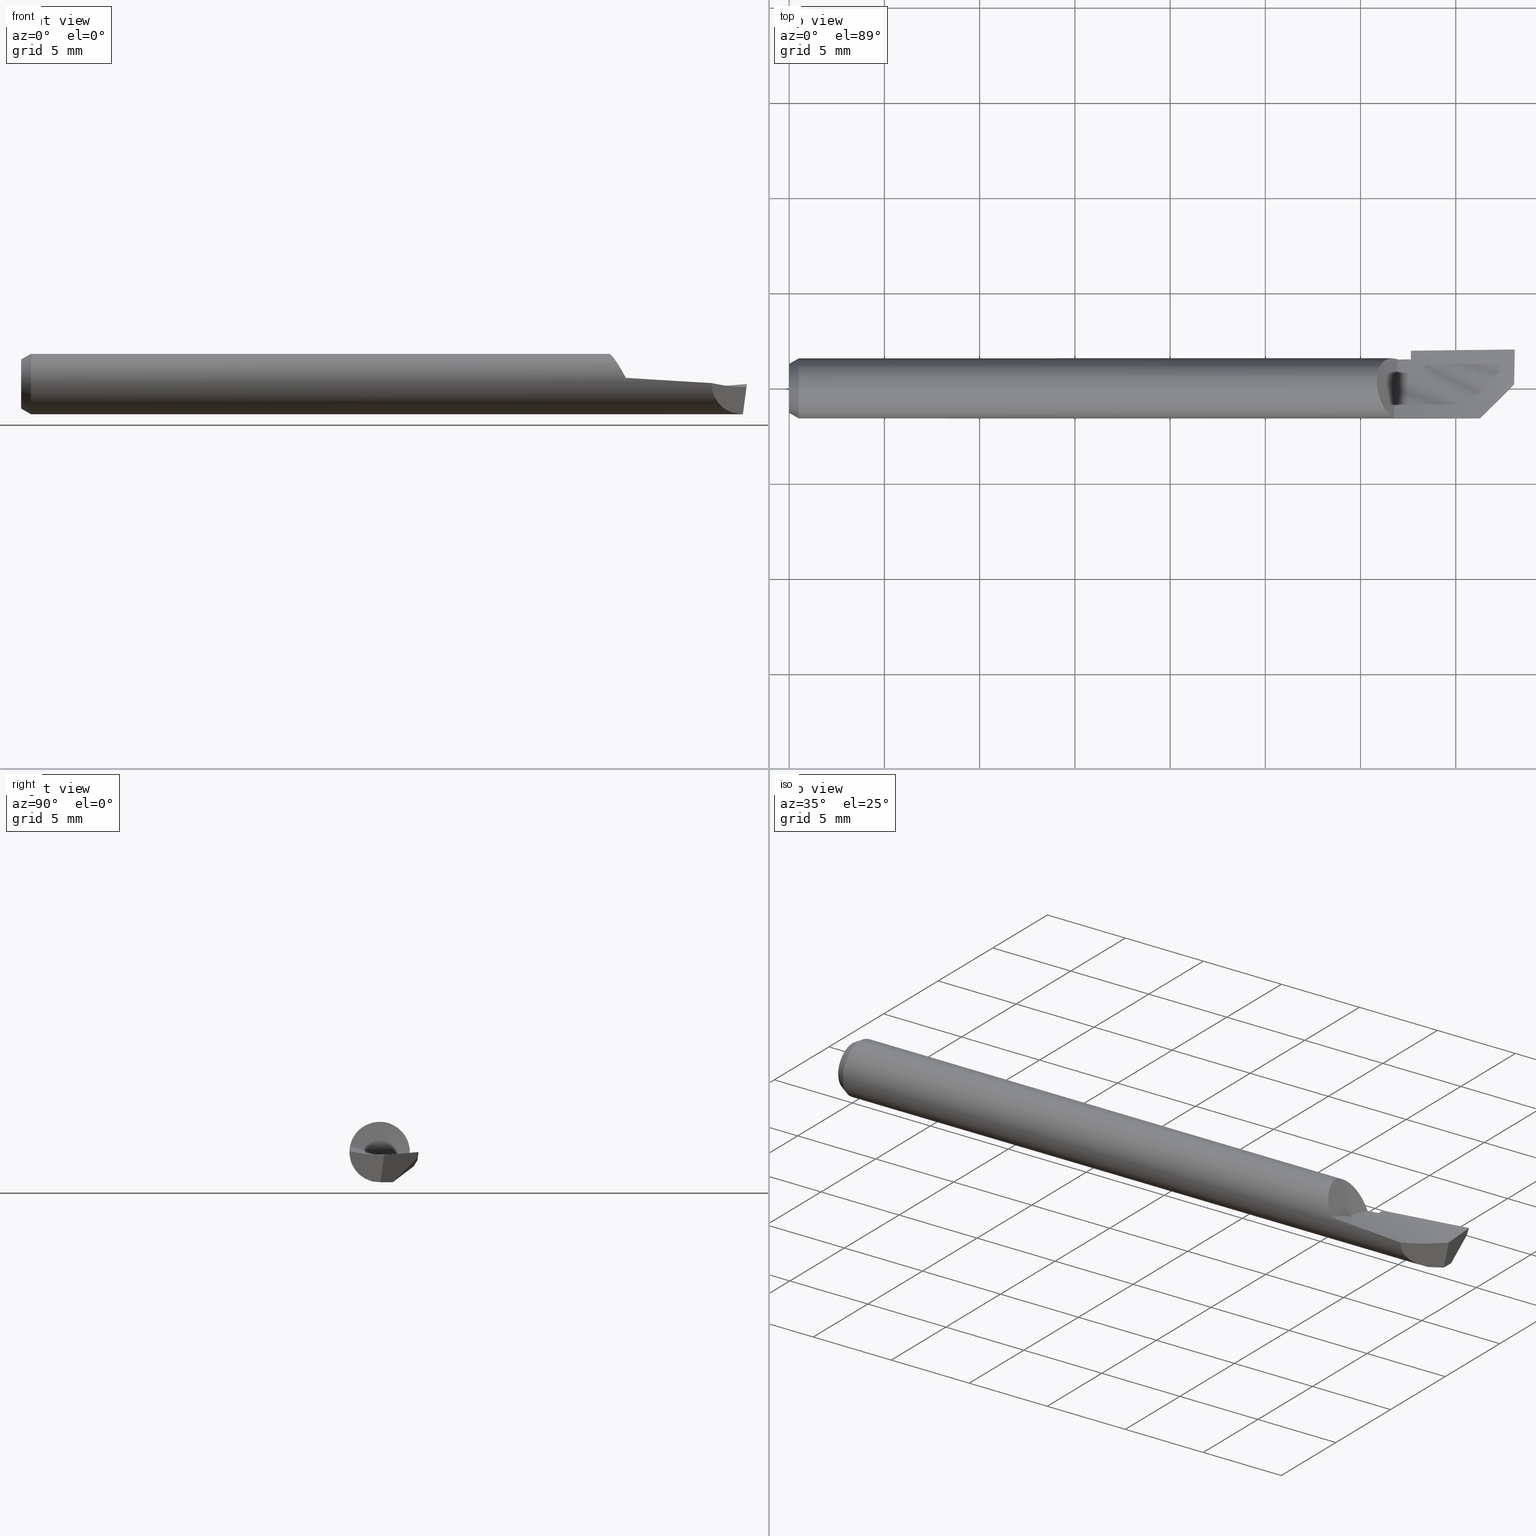
[diagram: canonical four-view strip — front | top / right | iso, engineering-drawing reading convention]
A machine part, canonical four-view strip (front | top / right | iso — engineering-drawing reading convention). The complete STEP part file that produces these views, byte-faithful:
ISO-10303-21;
HEADER;
FILE_DESCRIPTION (( 'STEP AP203' ),
    '1' );
FILE_NAME ('215739-HB150.STEP',
    '2024-07-30T21:05:15',
    ( '' ),
    ( '' ),
    'SwSTEP 2.0',
    'SolidWorks 2024',
    '' );
FILE_SCHEMA (( 'CONFIG_CONTROL_DESIGN' ));
ENDSEC;

DATA;
#1 = PERSON_AND_ORGANIZATION ( #154, #342 ) ;
#2 = CARTESIAN_POINT ( 'NONE',  ( 1.285000000000000142, 0.000000000000000000, -0.06239999999999999020 ) ) ;
#3 = ORIENTED_EDGE ( 'NONE', *, *, #375, .F. ) ;
#4 = ADVANCED_FACE ( 'NONE', ( #158 ), #104, .F. ) ;
#5 = VECTOR ( 'NONE', #303, 39.37007874015748143 ) ;
#6 = EDGE_CURVE ( 'NONE', #96, #221, #77, .T. ) ;
#7 = CARTESIAN_POINT ( 'NONE',  ( 1.338643880694338151, -0.06220352800694264883, 0.007386643929259769856 ) ) ;
#8 = ORIENTED_EDGE ( 'NONE', *, *, #168, .T. ) ;
#9 = EDGE_CURVE ( 'NONE', #232, #472, #204, .T. ) ;
#10 = CARTESIAN_POINT ( 'NONE',  ( 1.215341234382241620, 0.0004982669162004980945, 0.06239850635911061566 ) ) ;
#11 = VERTEX_POINT ( 'NONE', #286 ) ;
#12 = CARTESIAN_POINT ( 'NONE',  ( 1.215062640720519171, 0.002482261465665115772, 0.06235255943866734735 ) ) ;
#13 = CARTESIAN_POINT ( 'NONE',  ( 1.498570430108386420, 0.07639049162248937042, -0.01135039842946869437 ) ) ;
#14 = CARTESIAN_POINT ( 'NONE',  ( 1.233516715122231489, 0.05873520941118057226, 0.02125097969850281085 ) ) ;
#15 = CARTESIAN_POINT ( 'NONE',  ( 1.498808604085545948, 0.07707789029782824430, -0.009459555659213211495 ) ) ;
#16 = APPROVAL ( #455, 'UNSPECIFIED' ) ;
#17 = CARTESIAN_POINT ( 'NONE',  ( 0.000000000000000000, 0.000000000000000000, 0.000000000000000000 ) ) ;
#18 = CARTESIAN_POINT ( 'NONE',  ( 0.7962962962962978342, -0.04210506146454852383, 0.01909589215890198852 ) ) ;
#19 = ORIENTED_EDGE ( 'NONE', *, *, #217, .T. ) ;
#20 = CARTESIAN_POINT ( 'NONE',  ( 1.427229071682861727, -0.06237092831713793306, 0.001904547415644643844 ) ) ;
#21 = CONICAL_SURFACE ( 'NONE', #350, 0.06239999999999999714, 0.5235987755983002589 ) ;
#22 = AXIS2_PLACEMENT_3D ( 'NONE', #130, #179, #231 ) ;
#23 = LINE ( 'NONE', #71, #5 ) ;
#24 = CARTESIAN_POINT ( 'NONE',  ( 1.244636479562499565, 0.06229732504898780748, 0.003580627249325354054 ) ) ;
#25 = CARTESIAN_POINT ( 'NONE',  ( 1.228938620844154173, -0.03954811019755048729, 0.04826782345320551615 ) ) ;
#26 = CARTESIAN_POINT ( 'NONE',  ( 0.02000000000000000042, 0.000000000000000000, -0.06239999999999999714 ) ) ;
#27 = DIRECTION ( 'NONE',  ( 0.000000000000000000, 0.000000000000000000, 1.000000000000000000 ) ) ;
#28 = ADVANCED_FACE ( 'NONE', ( #289 ), #421, .T. ) ;
#29 = PLANE ( 'NONE',  #164 ) ;
#30 = LINE ( 'NONE', #160, #389 ) ;
#31 = CC_DESIGN_DATE_AND_TIME_ASSIGNMENT ( #95, #50, ( #539 ) ) ;
#32 = CARTESIAN_POINT ( 'NONE',  ( 1.252629383386663964, -0.02240979440101401043, -0.002553096178516221261 ) ) ;
#33 = ORIENTED_EDGE ( 'NONE', *, *, #90, .T. ) ;
#34 = COORDINATED_UNIVERSAL_TIME_OFFSET ( 8, 0, .BEHIND. ) ;
#35 = CARTESIAN_POINT ( 'NONE',  ( 1.492789826213970494, 0.03446688642667204011, -0.05544825501628470460 ) ) ;
#36 = PERSON_AND_ORGANIZATION ( #154, #342 ) ;
#37 =( BOUNDED_CURVE ( )  B_SPLINE_CURVE ( 3, ( #499, #136, #456, #398 ),
 .UNSPECIFIED., .F., .T. ) 
 B_SPLINE_CURVE_WITH_KNOTS ( ( 4, 4 ),
 ( 4.712388980384687898, 6.313711641188143986 ),
 .UNSPECIFIED. ) 
 CURVE ( )  GEOMETRIC_REPRESENTATION_ITEM ( )  RATIONAL_B_SPLINE_CURVE ( ( 1.000000000000000000, 0.7974880984232557424, 0.7974880984232557424, 1.000000000000000000 ) ) 
 REPRESENTATION_ITEM ( '' )  );
#38 = DIRECTION ( 'NONE',  ( 1.000000000000000000, 0.000000000000000000, 0.000000000000000000 ) ) ;
#39 = ORIENTED_EDGE ( 'NONE', *, *, #424, .F. ) ;
#40 = CIRCLE ( 'NONE', #128, 0.05085299461620744477 ) ;
#41 = APPROVAL_STATUS ( 'not_yet_approved' ) ;
#42 = DIRECTION ( 'NONE',  ( 0.1220122463319277123, 0.1220122463319273931, 0.9850005195379716305 ) ) ;
#43 = ORIENTED_EDGE ( 'NONE', *, *, #198, .F. ) ;
#44 = APPROVAL_ROLE ( '' ) ;
#45 = EDGE_CURVE ( 'NONE', #261, #180, #149, .T. ) ;
#46 = CARTESIAN_POINT ( 'NONE',  ( 1.496935170095070156, 0.06623259381584792327, -0.02394607398065381684 ) ) ;
#47 = ORIENTED_EDGE ( 'NONE', *, *, #405, .F. ) ;
#48 = B_SPLINE_CURVE_WITH_KNOTS ( 'NONE', 3,
 ( #326, #105, #507, #152 ),
 .UNSPECIFIED., .F., .F.,
 ( 4, 4 ),
 ( 2.322062217367471668E-16, 0.001824263073512901508 ),
 .UNSPECIFIED. ) ;
#49 = ADVANCED_FACE ( 'NONE', ( #106 ), #552, .F. ) ;
#50 = DATE_TIME_ROLE ( 'classification_date' ) ;
#51 = CARTESIAN_POINT ( 'NONE',  ( 1.495779368635660633, 0.05742269355516698565, -0.03273282644151234017 ) ) ;
#52 = ORIENTED_EDGE ( 'NONE', *, *, #374, .T. ) ;
#53 = CARTESIAN_POINT ( 'NONE',  ( 1.214999999999999858, 0.02656827298811766797, 0.05646137503133320107 ) ) ;
#54 = CARTESIAN_POINT ( 'NONE',  ( 0.7962962962962979452, -0.09302167809518145647, 0.09216304034620897978 ) ) ;
#55 = CARTESIAN_POINT ( 'NONE',  ( 1.215161247682621681, 0.001740713131355195020, 0.06237917047363608636 ) ) ;
#56 = CARTESIAN_POINT ( 'NONE',  ( 0.9722222222222235422, -0.1092725087323409422, 0.07576080870725090954 ) ) ;
#57 = CARTESIAN_POINT ( 'NONE',  ( 1.231911170695153324, 0.05764547565928701545, 0.02389072257668140714 ) ) ;
#58 = CARTESIAN_POINT ( 'NONE',  ( 1.499999999999999778, -0.04452895123775297420, -0.01243630973977583737 ) ) ;
#59 =( BOUNDED_CURVE ( )  B_SPLINE_CURVE ( 2, ( #408, #542, #575 ),
 .UNSPECIFIED., .F., .T. ) 
 B_SPLINE_CURVE_WITH_KNOTS ( ( 3, 3 ),
 ( 0.002800474881260479800, 0.3117378289616571374 ),
 .UNSPECIFIED. ) 
 CURVE ( )  GEOMETRIC_REPRESENTATION_ITEM ( )  RATIONAL_B_SPLINE_CURVE ( ( 0.9998628584775868244, 0.9923410090708106868, 0.9942195832789442189 ) ) 
 REPRESENTATION_ITEM ( '' )  );
#60 = LOCAL_TIME ( 14, 5, 15.00000000000000000, #34 ) ;
#61 = CARTESIAN_POINT ( 'NONE',  ( 0.02000000000000000042, 0.000000000000000000, 0.06239999999999999714 ) ) ;
#62 = EDGE_LOOP ( 'NONE', ( #364, #47, #257, #491 ) ) ;
#63 = DIMENSIONAL_EXPONENTS ( 1.000000000000000000, 0.000000000000000000, 0.000000000000000000, 0.000000000000000000, 0.000000000000000000, 0.000000000000000000, 0.000000000000000000 ) ;
#64 = CARTESIAN_POINT ( 'NONE',  ( 0.9833333333333347248, 0.06080022152004209424, -0.04802400282978503548 ) ) ;
#65 = EDGE_CURVE ( 'NONE', #518, #89, #414, .T. ) ;
#66 = ORIENTED_EDGE ( 'NONE', *, *, #374, .F. ) ;
#67 = CARTESIAN_POINT ( 'NONE',  ( 1.285000000000000586, 0.06038028350102195990, -0.01574742405834713907 ) ) ;
#68 = DIRECTION ( 'NONE',  ( 0.000000000000000000, 0.000000000000000000, -1.000000000000000000 ) ) ;
#69 = ADVANCED_FACE ( 'NONE', ( #213 ), #476, .F. ) ;
#70 = LOCAL_TIME ( 14, 5, 15.00000000000000000, #83 ) ;
#71 = CARTESIAN_POINT ( 'NONE',  ( 1.344799999999999773, -0.1448000000000000120, -0.06239999999999999020 ) ) ;
#72 = ORIENTED_EDGE ( 'NONE', *, *, #323, .F. ) ;
#73 = CARTESIAN_POINT ( 'NONE',  ( 1.242485752543471822, 0.06202582730458720134, 0.006956310956432748376 ) ) ;
#74 = CARTESIAN_POINT ( 'NONE',  ( 1.249835296245995098, -0.06108238399090171883, 0.01275548376142715545 ) ) ;
#75 = ORIENTED_EDGE ( 'NONE', *, *, #525, .F. ) ;
#76 = CARTESIAN_POINT ( 'NONE',  ( 1.353962018214266427, 0.02314617646180156321, -0.06239999999999999020 ) ) ;
#77 = B_SPLINE_CURVE_WITH_KNOTS ( 'NONE', 3,
 ( #290, #145, #423, #13, #15, #192, #113, #546, #504, #426 ),
 .UNSPECIFIED., .F., .F.,
 ( 4, 3, 3, 4 ),
 ( 6.857096618313869580E-19, 0.0001029188046693542261, 0.0002572972802890382085, 0.0004116760175425256260 ),
 .UNSPECIFIED. ) ;
#78 = CARTESIAN_POINT ( 'NONE',  ( 1.231210198614224982, -0.04348049364634020558, 0.04498844483085986945 ) ) ;
#79 = CC_DESIGN_PERSON_AND_ORGANIZATION_ASSIGNMENT ( #36, #459, ( #156 ) ) ;
#80 = CARTESIAN_POINT ( 'NONE',  ( 1.251846361524282303, 0.06201947540203197468, -0.007712021355594155143 ) ) ;
#81 = CARTESIAN_POINT ( 'NONE',  ( 1.228601843419931727, -0.03895000380799452933, 0.04875114253357506339 ) ) ;
#82 = VERTEX_POINT ( 'NONE', #556 ) ;
#83 = COORDINATED_UNIVERSAL_TIME_OFFSET ( 8, 0, .BEHIND. ) ;
#84 = CARTESIAN_POINT ( 'NONE',  ( 1.214999999999997859, 0.03552124287360624438, 0.05262055221089354667 ) ) ;
#85 = ORIENTED_EDGE ( 'NONE', *, *, #218, .F. ) ;
#86 = CARTESIAN_POINT ( 'NONE',  ( 0.02000000000000000042, 7.641796026679484656E-18, -0.06239999999999999714 ) ) ;
#87 = ORIENTED_EDGE ( 'NONE', *, *, #362, .T. ) ;
#88 =( NAMED_UNIT ( * ) SI_UNIT ( $, .STERADIAN. ) SOLID_ANGLE_UNIT ( ) );
#89 = VERTEX_POINT ( 'NONE', #74 ) ;
#90 = EDGE_CURVE ( 'NONE', #89, #11, #445, .T. ) ;
#91 = MECHANICAL_CONTEXT ( 'NONE', #558, 'mechanical' ) ;
#92 = CARTESIAN_POINT ( 'NONE',  ( 1.500000000000000222, 0.08049999999999998823, 0.000000000000000000 ) ) ;
#93 = EDGE_CURVE ( 'NONE', #99, #449, #538, .T. ) ;
#94 = ORIENTED_EDGE ( 'NONE', *, *, #6, .T. ) ;
#95 = DATE_AND_TIME ( #444, #70 ) ;
#96 = VERTEX_POINT ( 'NONE', #474 ) ;
#97 = CC_DESIGN_PERSON_AND_ORGANIZATION_ASSIGNMENT ( #533, #319, ( #539 ) ) ;
#98 = CARTESIAN_POINT ( 'NONE',  ( 1.155555555555556557, -0.04100383446170217938, -0.09234900009826521594 ) ) ;
#99 = VERTEX_POINT ( 'NONE', #436 ) ;
#100 =( GEOMETRIC_REPRESENTATION_CONTEXT ( 3 ) GLOBAL_UNCERTAINTY_ASSIGNED_CONTEXT ( ( #117 ) ) GLOBAL_UNIT_ASSIGNED_CONTEXT ( ( #207, #477, #88 ) ) REPRESENTATION_CONTEXT ( 'NONE', 'WORKASPACE' ) );
#101 = CARTESIAN_POINT ( 'NONE',  ( 1.500000000000000222, 0.07504044648600706469, -0.01500000000000001506 ) ) ;
#102 = CARTESIAN_POINT ( 'NONE',  ( 1.324074074074074403, 0.04233609429018298648, -0.02028796526564322078 ) ) ;
#103 = CARTESIAN_POINT ( 'NONE',  ( 1.230937209793407039, 0.05695609247891080668, 0.02549987211742123921 ) ) ;
#104 = PLANE ( 'NONE',  #341 ) ;
#105 = CARTESIAN_POINT ( 'NONE',  ( 1.499312381576385134, 0.05682575062050140152, -0.003917414861184890032 ) ) ;
#106 = FACE_OUTER_BOUND ( 'NONE', #188, .T. ) ;
#107 = VECTOR ( 'NONE', #508, 39.37007874015748143 ) ;
#108 = ADVANCED_FACE ( 'NONE', ( #260 ), #273, .T. ) ;
#109 = CARTESIAN_POINT ( 'NONE',  ( 1.285000000000000142, 0.02122393214403914263, -0.06239999999999997632 ) ) ;
#110 = DIRECTION ( 'NONE',  ( -1.000000000000000000, 0.000000000000000000, 0.000000000000000000 ) ) ;
#111 = EDGE_CURVE ( 'NONE', #457, #357, #250, .T. ) ;
#112 = CARTESIAN_POINT ( 'NONE',  ( 1.256278768973220217, 0.06077601470096085506, -0.01456594108188619639 ) ) ;
#113 = CARTESIAN_POINT ( 'NONE',  ( 1.499285083440839550, 0.07844896737594703184, -0.005676535577445449010 ) ) ;
#114 = CARTESIAN_POINT ( 'NONE',  ( 1.244214353131710027, 0.06225665313612734758, 0.004241600538668392761 ) ) ;
#115 = CARTESIAN_POINT ( 'NONE',  ( 1.327777777777777946, 0.08049999999999997435, -0.01274994744612516911 ) ) ;
#116 = ORIENTED_EDGE ( 'NONE', *, *, #422, .T. ) ;
#117 = UNCERTAINTY_MEASURE_WITH_UNIT (LENGTH_MEASURE( 1.000000000000000082E-05 ), #207, 'distance_accuracy_value', 'NONE');
#118 = AXIS2_PLACEMENT_3D ( 'NONE', #17, #412, #468 ) ;
#119 = CARTESIAN_POINT ( 'NONE',  ( 1.500000000000000222, 0.08049999999999998823, 0.000000000000000000 ) ) ;
#120 = B_SPLINE_CURVE_WITH_KNOTS ( 'NONE', 3,
 ( #331, #144, #376, #53 ),
 .UNSPECIFIED., .F., .F.,
 ( 4, 4 ),
 ( 0.000000000000000000, 1.000000000000000000 ),
 .UNSPECIFIED. ) ;
#121 = CARTESIAN_POINT ( 'NONE',  ( 1.422920425044222226, 0.02518942847711788668, -0.06239999999999997632 ) ) ;
#122 = CARTESIAN_POINT ( 'NONE',  ( 0.9833333333333347248, 0.06080022152004209424, -0.04802400282978503548 ) ) ;
#123 = CC_DESIGN_PERSON_AND_ORGANIZATION_ASSIGNMENT ( #307, #527, ( #246 ) ) ;
#124 = APPLICATION_CONTEXT ( 'configuration controlled 3d designs of mechanical parts and assemblies' ) ;
#125 = CARTESIAN_POINT ( 'NONE',  ( 1.199999999999999956, 0.000000000000000000, -0.06239999999999999020 ) ) ;
#126 = CARTESIAN_POINT ( 'NONE',  ( 1.214999999999999858, 0.000000000000000000, 0.000000000000000000 ) ) ;
#127 = CIRCLE ( 'NONE', #22, 0.06239999999999999714 ) ;
#128 = AXIS2_PLACEMENT_3D ( 'NONE', #471, #503, #282 ) ;
#129 = DATE_AND_TIME ( #530, #308 ) ;
#130 = CARTESIAN_POINT ( 'NONE',  ( 0.02000000000000000042, 0.000000000000000000, 0.000000000000000000 ) ) ;
#131 = ORIENTED_EDGE ( 'NONE', *, *, #482, .T. ) ;
#132 = PLANE ( 'NONE',  #243 ) ;
#133 = ORIENTED_EDGE ( 'NONE', *, *, #301, .F. ) ;
#134 = ADVANCED_FACE ( 'NONE', ( #347 ), #377, .T. ) ;
#135 = DATE_AND_TIME ( #276, #520 ) ;
#136 = CARTESIAN_POINT ( 'NONE',  ( 1.452155962588423943, -0.03744403741157589088, -0.06240000000000008040 ) ) ;
#137 = ORIENTED_EDGE ( 'NONE', *, *, #565, .F. ) ;
#138 = PERSON_AND_ORGANIZATION ( #154, #342 ) ;
#139 = CARTESIAN_POINT ( 'NONE',  ( 1.249835296245995098, -0.06108238399090171883, 0.01275548376142715545 ) ) ;
#140 = ORIENTED_EDGE ( 'NONE', *, *, #405, .T. ) ;
#141 = APPROVAL ( #41, 'UNSPECIFIED' ) ;
#142 = FACE_OUTER_BOUND ( 'NONE', #543, .T. ) ;
#143 = ORIENTED_EDGE ( 'NONE', *, *, #218, .T. ) ;
#144 = CARTESIAN_POINT ( 'NONE',  ( 1.214999999999999858, 0.01083956874227856755, 0.06037428967426877735 ) ) ;
#145 = CARTESIAN_POINT ( 'NONE',  ( 1.498252884790431061, 0.07547341054155225215, -0.01387132031019349017 ) ) ;
#146 = CARTESIAN_POINT ( 'NONE',  ( 1.229120050926931107, 0.05549586416279576190, 0.02854872319384249915 ) ) ;
#147 = ORIENTED_EDGE ( 'NONE', *, *, #487, .T. ) ;
#148 = CARTESIAN_POINT ( 'NONE',  ( 1.155555555555556557, 0.06673245070059055650, -0.03745462097408729790 ) ) ;
#149 = LINE ( 'NONE', #332, #107 ) ;
#150 = EDGE_CURVE ( 'NONE', #472, #82, #23, .T. ) ;
#151 = ADVANCED_FACE ( 'NONE', ( #210 ), #384, .T. ) ;
#152 = CARTESIAN_POINT ( 'NONE',  ( 1.498583317375058899, 0.008983317375058863519, -0.006454686212403699941 ) ) ;
#153 = CARTESIAN_POINT ( 'NONE',  ( 1.214999999999999858, 0.1376757507038381678, 0.4738830421824932193 ) ) ;
#154 = PERSON ( 'UNSPECIFIED', 'UNSPECIFIED', 'UNSPECIFIED', ('UNSPECIFIED'), ('UNSPECIFIED'), ('UNSPECIFIED') ) ;
#155 = VECTOR ( 'NONE', #233, 39.37007874015748143 ) ;
#156 = PRODUCT_DEFINITION_FORMATION_WITH_SPECIFIED_SOURCE ( 'ANY', '', #172, .NOT_KNOWN. ) ;
#157 =( LENGTH_UNIT ( ) NAMED_UNIT ( * ) SI_UNIT ( $, .METRE. ) );
#158 = FACE_OUTER_BOUND ( 'NONE', #229, .T. ) ;
#159 = CARTESIAN_POINT ( 'NONE',  ( 1.249835296245995098, -0.06108238399090171883, 0.01275548376142715545 ) ) ;
#160 = CARTESIAN_POINT ( 'NONE',  ( 0.000000000000000000, 0.000000000000000000, 0.06239999999999999714 ) ) ;
#161 = DIRECTION ( 'NONE',  ( 0.000000000000000000, 0.000000000000000000, 1.000000000000000000 ) ) ;
#162 = ORIENTED_EDGE ( 'NONE', *, *, #65, .T. ) ;
#163 = CARTESIAN_POINT ( 'NONE',  ( 1.285000000000000364, 0.07222602073669348588, -0.01668732863539127212 ) ) ;
#164 = AXIS2_PLACEMENT_3D ( 'NONE', #475, #557, #566 ) ;
#165 = CARTESIAN_POINT ( 'NONE',  ( 0.02000000000000000042, 7.641796026679484656E-18, 0.06239999999999999714 ) ) ;
#166 = CARTESIAN_POINT ( 'NONE',  ( 1.450816366310603511, -0.03878363368939651695, -0.004285371699869884761 ) ) ;
#167 = CARTESIAN_POINT ( 'NONE',  ( 0.8111111111111127814, 0.06512586804718326072, -0.04731671280954407449 ) ) ;
#168 = EDGE_CURVE ( 'NONE', #180, #82, #216, .T. ) ;
#169 = PERSON_AND_ORGANIZATION_ROLE ( 'creator' ) ;
#170 = CARTESIAN_POINT ( 'NONE',  ( 1.215416354742557825, -3.096158160012943776E-07, 0.06240138776565496564 ) ) ;
#171 = ADVANCED_FACE ( 'NONE', ( #280 ), #21, .T. ) ;
#172 = PRODUCT ( '215739-HB150', '215739-HB150', '', ( #91 ) ) ;
#173 = APPROVAL_STATUS ( 'not_yet_approved' ) ;
#174 = CARTESIAN_POINT ( 'NONE',  ( 1.500000000000000222, 0.08049999999999998823, 0.000000000000000000 ) ) ;
#175 = APPROVAL_PERSON_ORGANIZATION ( #397, #16, #44 ) ;
#176 = B_SPLINE_CURVE_WITH_KNOTS ( 'NONE', 3,
 ( #191, #333, #372, #238, #193, #241, #547, #146, #329, #103, #288, #197, #466, #57, #14, #370, #549, #252, #381, #73, #259, #114, #555, #24, #305, #390, #80, #112, #561, #346 ),
 .UNSPECIFIED., .F., .F.,
 ( 4, 2, 2, 2, 1, 1, 1, 2, 2, 2, 2, 1, 1, 1, 2, 2, 2, 4 ),
 ( 0.000000000000000000, 0.2500000000000091593, 0.3750000000000144329, 0.4375000000000178191, 0.4687500000000195399, 0.4843750000000187628, 0.4921875000000165978, 0.4960937500000154876, 0.5000000000000144329, 0.6249999999999950040, 0.6874999999999875655, 0.7187499999999837907, 0.7343749999999819034, 0.7421874999999810152, 0.7460937499999804601, 0.7499999999999799050, 0.8749999999999900080, 1.000000000000000000 ),
 .UNSPECIFIED. ) ;
#177 = ORIENTED_EDGE ( 'NONE', *, *, #565, .T. ) ;
#178 = PERSON_AND_ORGANIZATION_ROLE ( 'design_owner' ) ;
#179 = DIRECTION ( 'NONE',  ( -1.000000000000000000, -0.000000000000000000, -0.000000000000000000 ) ) ;
#180 = VERTEX_POINT ( 'NONE', #2 ) ;
#181 = APPROVAL_DATE_TIME ( #354, #141 ) ;
#182 = CARTESIAN_POINT ( 'NONE',  ( 1.285000000000000142, 0.06239999999999999714, 0.000000000000000000 ) ) ;
#183 = ORIENTED_EDGE ( 'NONE', *, *, #482, .F. ) ;
#184 = PRODUCT_RELATED_PRODUCT_CATEGORY ( 'detail', '', ( #172 ) ) ;
#185 = DIRECTION ( 'NONE',  ( 0.000000000000000000, 0.000000000000000000, 1.000000000000000000 ) ) ;
#186 = CARTESIAN_POINT ( 'NONE',  ( 1.215000000000000302, 0.07563097999572351848, 0.04879436779900076654 ) ) ;
#187 = AXIS2_PLACEMENT_3D ( 'NONE', #208, #382, #68 ) ;
#188 = EDGE_LOOP ( 'NONE', ( #411, #87 ) ) ;
#189 = CARTESIAN_POINT ( 'NONE',  ( 1.427229071682861727, -0.06237092831713793306, 0.001904547415644643844 ) ) ;
#190 = ORIENTED_EDGE ( 'NONE', *, *, #525, .T. ) ;
#191 = CARTESIAN_POINT ( 'NONE',  ( 1.214999999999999858, 0.02656827298811766797, 0.05646137503133320107 ) ) ;
#192 = CARTESIAN_POINT ( 'NONE',  ( 1.499046821953785802, 0.07776404945964025817, -0.007568267343788079651 ) ) ;
#193 = CARTESIAN_POINT ( 'NONE',  ( 1.223683417556308273, 0.04962681717030364981, 0.03804160079550419904 ) ) ;
#194 = CARTESIAN_POINT ( 'NONE',  ( 1.499999999999999778, 0.1304999999999998384, 0.01080780280633125007 ) ) ;
#195 = AXIS2_PLACEMENT_3D ( 'NONE', #153, #110, #292 ) ;
#196 = VECTOR ( 'NONE', #42, 39.37007874015748143 ) ;
#197 = CARTESIAN_POINT ( 'NONE',  ( 1.231665086290065991, 0.05747591180185984000, 0.02429602497390106683 ) ) ;
#198 = EDGE_CURVE ( 'NONE', #402, #573, #443, .T. ) ;
#199 = CARTESIAN_POINT ( 'NONE',  ( 1.148148148148148806, -0.04609699532909253966, 0.003543489792202707874 ) ) ;
#200 = EDGE_CURVE ( 'NONE', #96, #402, #59, .T. ) ;
#201 = CARTESIAN_POINT ( 'NONE',  ( 1.215416354742557825, -3.096158160012943776E-07, 0.06240138776565496564 ) ) ;
#202 = CARTESIAN_POINT ( 'NONE',  ( 1.499999999999999778, 0.04452895123775293951, -0.01243630973977578186 ) ) ;
#203 = CARTESIAN_POINT ( 'NONE',  ( 0.000000000000000000, 0.000000000000000000, 0.000000000000000000 ) ) ;
#204 = LINE ( 'NONE', #245, #450 ) ;
#205 = CC_DESIGN_DATE_AND_TIME_ASSIGNMENT ( #135, #495, ( #246 ) ) ;
#206 = AXIS2_PLACEMENT_3D ( 'NONE', #480, #478, #27 ) ;
#207 =( CONVERSION_BASED_UNIT ( 'INCH', #512 ) LENGTH_UNIT ( ) NAMED_UNIT ( #63 ) );
#208 = CARTESIAN_POINT ( 'NONE',  ( 0.02000000000000000042, 0.000000000000000000, 0.000000000000000000 ) ) ;
#209 = DIRECTION ( 'NONE',  ( -1.000000000000000000, -0.000000000000000000, -0.000000000000000000 ) ) ;
#210 = FACE_OUTER_BOUND ( 'NONE', #275, .T. ) ;
#211 = EDGE_LOOP ( 'NONE', ( #378, #314, #560, #183, #43 ) ) ;
#212 = CARTESIAN_POINT ( 'NONE',  ( 1.491874392833614227, 0.02738142070716441737, -0.06239999999999999020 ) ) ;
#213 = FACE_OUTER_BOUND ( 'NONE', #494, .T. ) ;
#214 = CARTESIAN_POINT ( 'NONE',  ( 1.500000000000000222, 0.08049999999999998823, 0.000000000000000000 ) ) ;
#215 = CC_DESIGN_APPROVAL ( #16, ( #156 ) ) ;
#216 = LINE ( 'NONE', #125, #155 ) ;
#217 = EDGE_CURVE ( 'NONE', #232, #96, #287, .T. ) ;
#218 = EDGE_CURVE ( 'NONE', #89, #385, #339, .T. ) ;
#219 = CARTESIAN_POINT ( 'NONE',  ( 1.284999999999999254, 0.07815578551701131416, -0.01699865729007948509 ) ) ;
#220 = DIRECTION ( 'NONE',  ( -0.7071067811865466846, 0.7071067811865483499, 0.000000000000000000 ) ) ;
#221 = VERTEX_POINT ( 'NONE', #92 ) ;
#222 = ADVANCED_FACE ( 'NONE', ( #365 ), #225, .T. ) ;
#223 = CARTESIAN_POINT ( 'NONE',  ( 0.000000000000000000, 0.000000000000000000, -0.05085299461620744477 ) ) ;
#224 = ORIENTED_EDGE ( 'NONE', *, *, #217, .F. ) ;
#225 = B_SPLINE_SURFACE_WITH_KNOTS ( 'NONE', 1, 3, ( 
 ( #309, #488, #84, #186 ),
 ( #277, #267, #320, #355 ) ),
 .UNSPECIFIED., .F., .F., .F.,
 ( 2, 2 ),
 ( 4, 4 ),
 ( 0.000000000000000000, 1.000000000000000000 ),
 ( 0.01047409669607552753, 0.01355842305451047079 ),
 .UNSPECIFIED. ) ;
#226 = DIRECTION ( 'NONE',  ( 1.000000000000000000, 0.000000000000000000, 0.000000000000000000 ) ) ;
#227 = ORIENTED_EDGE ( 'NONE', *, *, #90, .F. ) ;
#228 = DIRECTION ( 'NONE',  ( -1.000000000000000000, -0.000000000000000000, -0.000000000000000000 ) ) ;
#229 = EDGE_LOOP ( 'NONE', ( #500, #366, #254, #454, #242 ) ) ;
#230 = CALENDAR_DATE ( 2024, 30, 7 ) ;
#231 = DIRECTION ( 'NONE',  ( 0.000000000000000000, 0.000000000000000000, 1.000000000000000000 ) ) ;
#232 = VERTEX_POINT ( 'NONE', #531 ) ;
#233 = DIRECTION ( 'NONE',  ( 1.000000000000000000, -0.000000000000000000, -0.000000000000000000 ) ) ;
#234 = ORIENTED_EDGE ( 'NONE', *, *, #9, .F. ) ;
#235 = AXIS2_PLACEMENT_3D ( 'NONE', #203, #291, #501 ) ;
#236 = CARTESIAN_POINT ( 'NONE',  ( 1.427229071682861727, -0.06237092831713793306, 0.001904547415644643844 ) ) ;
#237 = CARTESIAN_POINT ( 'NONE',  ( 0.9722222222222234311, -0.04547218247286216597, 0.01167163379831380812 ) ) ;
#238 = CARTESIAN_POINT ( 'NONE',  ( 1.222031673769640170, 0.04711422705662771104, 0.04109495911430026405 ) ) ;
#239 = CARTESIAN_POINT ( 'NONE',  ( 0.9722222222222235422, 0.1202470393179030789, -0.05675236414383861422 ) ) ;
#240 = B_SPLINE_CURVE_WITH_KNOTS ( 'NONE', 3,
 ( #263, #76, #121, #212 ),
 .UNSPECIFIED., .F., .F.,
 ( 4, 4 ),
 ( 0.000000000000000000, 0.005256936623784464434 ),
 .UNSPECIFIED. ) ;
#241 = CARTESIAN_POINT ( 'NONE',  ( 1.226518768419224914, 0.05298604985758788993, 0.03301960953545664962 ) ) ;
#242 = ORIENTED_EDGE ( 'NONE', *, *, #45, .F. ) ;
#243 = AXIS2_PLACEMENT_3D ( 'NONE', #174, #311, #313 ) ;
#244 = CARTESIAN_POINT ( 'NONE',  ( 1.215385474800205978, 0.0002051950932025594699, 0.06240000065721609118 ) ) ;
#245 = CARTESIAN_POINT ( 'NONE',  ( 1.491613230050231831, -0.002544870104682421010, -0.06239999999999999020 ) ) ;
#246 = PRODUCT_DEFINITION ( 'UNKNOWN', '', #156, #473 ) ;
#247 = CARTESIAN_POINT ( 'NONE',  ( 1.327777777777777946, -0.02637718976660789749, -0.09884336947064184531 ) ) ;
#248 = DIRECTION ( 'NONE',  ( 0.000000000000000000, -0.000000000000000000, 1.000000000000000000 ) ) ;
#249 = CARTESIAN_POINT ( 'NONE',  ( 1.498583317375058899, 0.008983317375058863519, -0.006454686212403699941 ) ) ;
#250 = LINE ( 'NONE', #165, #438 ) ;
#251 = CIRCLE ( 'NONE', #118, 0.05085299461620744477 ) ;
#252 = CARTESIAN_POINT ( 'NONE',  ( 1.239720982764604962, 0.06139425361475552012, 0.01132678698372264862 ) ) ;
#253 = CARTESIAN_POINT ( 'NONE',  ( 1.249835296245995098, -0.06108238399090171883, 0.01275548376142715545 ) ) ;
#254 = ORIENTED_EDGE ( 'NONE', *, *, #150, .T. ) ;
#255 = DIRECTION ( 'NONE',  ( 0.000000000000000000, 0.000000000000000000, 1.000000000000000000 ) ) ;
#256 = CARTESIAN_POINT ( 'NONE',  ( 1.155555555555556557, 0.07656004956175985199, -0.02487586804718325967 ) ) ;
#257 = ORIENTED_EDGE ( 'NONE', *, *, #485, .T. ) ;
#258 = EDGE_CURVE ( 'NONE', #312, #357, #127, .T. ) ;
#259 = CARTESIAN_POINT ( 'NONE',  ( 1.243630165472373816, 0.06219032946664695277, 0.005157620384251591396 ) ) ;
#260 = FACE_OUTER_BOUND ( 'NONE', #62, .T. ) ;
#261 = VERTEX_POINT ( 'NONE', #534 ) ;
#262 = AXIS2_PLACEMENT_3D ( 'NONE', #126, #337, #161 ) ;
#263 = CARTESIAN_POINT ( 'NONE',  ( 1.285000000000000142, 0.02122393214403914263, -0.06239999999999997632 ) ) ;
#264 = VECTOR ( 'NONE', #367, 39.37007874015748143 ) ;
#265 = CARTESIAN_POINT ( 'NONE',  ( 1.255365967155684714, 0.01860310065129406470, -0.01275313803215253824 ) ) ;
#266 = ORIENTED_EDGE ( 'NONE', *, *, #279, .F. ) ;
#267 = CARTESIAN_POINT ( 'NONE',  ( 1.252524114887808349, -0.02361430046662641238, -0.002738913424446218561 ) ) ;
#268 = PERSON_AND_ORGANIZATION ( #154, #342 ) ;
#269 = CARTESIAN_POINT ( 'NONE',  ( 1.285000000000000586, 0.06038028350102195990, -0.01574742405834713907 ) ) ;
#270 = EDGE_LOOP ( 'NONE', ( #66, #190, #131, #399, #162, #143, #137 ) ) ;
#271 = SECURITY_CLASSIFICATION_LEVEL ( 'unclassified' ) ;
#272 = DIRECTION ( 'NONE',  ( 0.000000000000000000, 0.000000000000000000, 1.000000000000000000 ) ) ;
#273 = CONICAL_SURFACE ( 'NONE', #187, 0.06239999999999999714, 0.5235987755983002589 ) ;
#274 = APPROVAL_PERSON_ORGANIZATION ( #1, #391, #571 ) ;
#275 = EDGE_LOOP ( 'NONE', ( #72, #8, #284, #85, #33, #147, #353 ) ) ;
#276 = CALENDAR_DATE ( 2024, 30, 7 ) ;
#277 = CARTESIAN_POINT ( 'NONE',  ( 1.249477145073455864, -0.06702986064730614979, 0.01515205516212932320 ) ) ;
#278 = ORIENTED_EDGE ( 'NONE', *, *, #485, .F. ) ;
#279 = EDGE_CURVE ( 'NONE', #82, #385, #37, .T. ) ;
#280 = FACE_OUTER_BOUND ( 'NONE', #463, .T. ) ;
#281 = VERTEX_POINT ( 'NONE', #223 ) ;
#282 = DIRECTION ( 'NONE',  ( 0.000000000000000000, 0.000000000000000000, 1.000000000000000000 ) ) ;
#283 = ADVANCED_FACE ( 'NONE', ( #572 ), #132, .F. ) ;
#284 = ORIENTED_EDGE ( 'NONE', *, *, #279, .T. ) ;
#285 = CARTESIAN_POINT ( 'NONE',  ( 0.9833333333333347248, -0.05563047915679646127, -0.08585463072588858657 ) ) ;
#286 = CARTESIAN_POINT ( 'NONE',  ( 1.215416354742557825, -3.096158160012943776E-07, 0.06240138776565496564 ) ) ;
#287 = B_SPLINE_CURVE_WITH_KNOTS ( 'NONE', 3,
 ( #493, #35, #315, #460, #51, #46, #496 ),
 .UNSPECIFIED., .F., .F.,
 ( 4, 3, 4 ),
 ( 1.779478444136748701E-05, 0.0007773853438262711768, 0.001729594564419842341 ),
 .UNSPECIFIED. ) ;
#288 = CARTESIAN_POINT ( 'NONE',  ( 1.231445256067857930, 0.05732214278859906059, 0.02465872129221273468 ) ) ;
#289 = FACE_OUTER_BOUND ( 'NONE', #270, .T. ) ;
#290 = CARTESIAN_POINT ( 'NONE',  ( 1.498094141416539626, 0.07501404401408366673, -0.01513148404725747284 ) ) ;
#291 = DIRECTION ( 'NONE',  ( -1.000000000000000000, -0.000000000000000000, -0.000000000000000000 ) ) ;
#292 = DIRECTION ( 'NONE',  ( 0.000000000000000000, 0.2789911060392297748, 0.9602936856769428431 ) ) ;
#293 = CARTESIAN_POINT ( 'NONE',  ( 1.285000000000000586, 0.06038028350102195990, -0.01574742405834713907 ) ) ;
#294 = CARTESIAN_POINT ( 'NONE',  ( 1.324074074074074625, -0.1285942927630670529, 0.03381847378878584387 ) ) ;
#295 = CARTESIAN_POINT ( 'NONE',  ( 1.428339645624105758, 0.08031556160471547967, -0.005811896307208636557 ) ) ;
#296 = CARTESIAN_POINT ( 'NONE',  ( 1.155555555555556557, 0.06673245070059055650, -0.03745462097408729790 ) ) ;
#297 = CIRCLE ( 'NONE', #529, 0.06239999999999999714 ) ;
#298 = CARTESIAN_POINT ( 'NONE',  ( 1.221587132636402728, -0.02369398746549044796, 0.05784362774931333523 ) ) ;
#299 = EDGE_CURVE ( 'NONE', #357, #312, #297, .T. ) ;
#300 = DIRECTION ( 'NONE',  ( 0.8660254037844379305, 0.000000000000000000, -0.5000000000000012212 ) ) ;
#301 = EDGE_CURVE ( 'NONE', #472, #502, #453, .T. ) ;
#302 =( BOUNDED_CURVE ( )  B_SPLINE_CURVE ( 3, ( #386, #163, #344, #293 ),
 .UNSPECIFIED., .F., .T. ) 
 B_SPLINE_CURVE_WITH_KNOTS ( ( 4, 4 ),
 ( 8.400482781909875574E-05, 0.0005361899232507196487 ),
 .UNSPECIFIED. ) 
 CURVE ( )  GEOMETRIC_REPRESENTATION_ITEM ( )  RATIONAL_B_SPLINE_CURVE ( ( 0.9818899732500591115, 0.9809521610757138133, 0.9801186838641855470, 0.9793895416154743128 ) ) 
 REPRESENTATION_ITEM ( '' )  );
#303 = DIRECTION ( 'NONE',  ( -0.7071067811865483499, -0.7071067811865466846, 0.000000000000000000 ) ) ;
#304 = ORIENTED_EDGE ( 'NONE', *, *, #375, .T. ) ;
#305 = CARTESIAN_POINT ( 'NONE',  ( 1.244682950516643016, 0.06230162282814328406, 0.003507885105012513525 ) ) ;
#306 = DIRECTION ( 'NONE',  ( -0.7071067811865483499, -0.7071067811865466846, 0.000000000000000000 ) ) ;
#307 = PERSON_AND_ORGANIZATION ( #154, #342 ) ;
#308 = LOCAL_TIME ( 14, 5, 15.00000000000000000, #395 ) ;
#309 = CARTESIAN_POINT ( 'NONE',  ( 1.214999999999999192, -0.04165141917533745491, 0.07758982109010667538 ) ) ;
#310 = APPROVAL_DATE_TIME ( #129, #391 ) ;
#311 = DIRECTION ( 'NONE',  ( -0.9925083585251990304, 0.008661489226065358787, 0.1218693434051474900 ) ) ;
#312 = VERTEX_POINT ( 'NONE', #86 ) ;
#313 = DIRECTION ( 'NONE',  ( 0.1218739150664907706, 0.000000000000000000, 0.9925455903012041503 ) ) ;
#314 = ORIENTED_EDGE ( 'NONE', *, *, #45, .T. ) ;
#315 = CARTESIAN_POINT ( 'NONE',  ( 1.493707277637140951, 0.04153478646506825883, -0.04847882659177697728 ) ) ;
#316 = AXIS2_PLACEMENT_3D ( 'NONE', #351, #185, #400 ) ;
#317 = VERTEX_POINT ( 'NONE', #269 ) ;
#318 = ADVANCED_FACE ( 'NONE', ( #578 ), #448, .F. ) ;
#319 = PERSON_AND_ORGANIZATION_ROLE ( 'classification_officer' ) ;
#320 = CARTESIAN_POINT ( 'NONE',  ( 1.255679714658388901, 0.02260273811150143378, -0.01405578826490063056 ) ) ;
#321 = EDGE_CURVE ( 'NONE', #261, #402, #519, .T. ) ;
#322 = ORIENTED_EDGE ( 'NONE', *, *, #93, .T. ) ;
#323 = EDGE_CURVE ( 'NONE', #180, #312, #551, .T. ) ;
#324 = FACE_OUTER_BOUND ( 'NONE', #541, .T. ) ;
#325 = ORIENTED_EDGE ( 'NONE', *, *, #323, .T. ) ;
#326 = CARTESIAN_POINT ( 'NONE',  ( 1.500000000000000222, 0.08049999999999998823, 0.000000000000000000 ) ) ;
#327 = CARTESIAN_POINT ( 'NONE',  ( 1.148148148148148806, -0.1189334007477039767, 0.05478964124801836283 ) ) ;
#328 = LOCAL_TIME ( 14, 5, 15.00000000000000000, #486 ) ;
#329 = CARTESIAN_POINT ( 'NONE',  ( 1.229940680887320781, 0.05619540205819162360, 0.02716132427227490459 ) ) ;
#330 = ORIENTED_EDGE ( 'NONE', *, *, #563, .F. ) ;
#331 = CARTESIAN_POINT ( 'NONE',  ( 1.214999999999999858, 0.002974872207176468188, 0.06232904728415931961 ) ) ;
#332 = CARTESIAN_POINT ( 'NONE',  ( 1.285000000000000142, 0.06239999999999999714, -0.06239999999999999020 ) ) ;
#333 = CARTESIAN_POINT ( 'NONE',  ( 1.215919365933783247, 0.03286560805013540726, 0.05349813510236401531 ) ) ;
#334 = CARTESIAN_POINT ( 'NONE',  ( 1.199999999999999956, 0.000000000000000000, -0.06239999999999999020 ) ) ;
#335 = DIRECTION ( 'NONE',  ( -0.008726535498366801494, -0.9999619230641711987, 0.000000000000000000 ) ) ;
#336 = CARTESIAN_POINT ( 'NONE',  ( 1.356669798653250103, 0.07952544297217399583, -0.01147438205678345639 ) ) ;
#337 = DIRECTION ( 'NONE',  ( -1.000000000000000000, 0.000000000000000000, 0.000000000000000000 ) ) ;
#338 = FACE_OUTER_BOUND ( 'NONE', #388, .T. ) ;
#339 =( BOUNDED_CURVE ( )  B_SPLINE_CURVE ( 2, ( #139, #7, #189 ),
 .UNSPECIFIED., .F., .F. ) 
 B_SPLINE_CURVE_WITH_KNOTS ( ( 3, 3 ),
 ( 0.6451632367925622669, 0.8958541847013351545 ),
 .UNSPECIFIED. ) 
 CURVE ( )  GEOMETRIC_REPRESENTATION_ITEM ( )  RATIONAL_B_SPLINE_CURVE ( ( 0.9803429797851890282, 0.9771918254678608751, 0.9815758700507004608 ) ) 
 REPRESENTATION_ITEM ( '' )  );
#340 = CARTESIAN_POINT ( 'NONE',  ( 0.9833333333333347248, 0.07262009912351971574, -0.03700178864824135022 ) ) ;
#341 = AXIS2_PLACEMENT_3D ( 'NONE', #334, #248, #511 ) ;
#342 = ORGANIZATION ( 'UNSPECIFIED', 'UNSPECIFIED', '' ) ;
#343 = B_SPLINE_CURVE_WITH_KNOTS ( 'NONE', 3,
 ( #214, #295, #336, #383 ),
 .UNSPECIFIED., .F., .F.,
 ( 4, 4 ),
 ( 6.960919512205830802E-18, 0.005478461887785326598 ),
 .UNSPECIFIED. ) ;
#344 = CARTESIAN_POINT ( 'NONE',  ( 1.285000000000000364, 0.06630021874635304291, -0.01627029642031938006 ) ) ;
#345 = CARTESIAN_POINT ( 'NONE',  ( 1.216396980198236388, -0.006366907595454449412, 0.06239997961777467989 ) ) ;
#346 = CARTESIAN_POINT ( 'NONE',  ( 1.258103799009599344, 0.05994036010015910132, -0.01734685075347273953 ) ) ;
#347 = FACE_OUTER_BOUND ( 'NONE', #535, .T. ) ;
#348 = APPROVAL_DATE_TIME ( #447, #16 ) ;
#349 = CARTESIAN_POINT ( 'NONE',  ( 1.240848254320486399, -0.05547916175596864785, 0.02939914910442548851 ) ) ;
#350 = AXIS2_PLACEMENT_3D ( 'NONE', #410, #38, #540 ) ;
#351 = CARTESIAN_POINT ( 'NONE',  ( 0.000000000000000000, 0.000000000000000000, 0.000000000000000000 ) ) ;
#352 = CARTESIAN_POINT ( 'NONE',  ( 1.284999999999999254, 0.07815578551701131416, -0.01699865729007948509 ) ) ;
#353 = ORIENTED_EDGE ( 'NONE', *, *, #258, .F. ) ;
#354 = DATE_AND_TIME ( #536, #60 ) ;
#355 = CARTESIAN_POINT ( 'NONE',  ( 1.258707990173291602, 0.06920770962084182854, -0.01828448365379964358 ) ) ;
#356 = ADVANCED_BREP_SHAPE_REPRESENTATION ( '215739-HB150', ( #406, #316 ), #100 ) ;
#357 = VERTEX_POINT ( 'NONE', #61 ) ;
#358 = DIRECTION ( 'NONE',  ( 0.000000000000000000, 0.000000000000000000, -1.000000000000000000 ) ) ;
#359 = ORIENTED_EDGE ( 'NONE', *, *, #200, .T. ) ;
#360 = ADVANCED_FACE ( 'NONE', ( #324 ), #545, .T. ) ;
#361 =( BOUNDED_CURVE ( )  B_SPLINE_CURVE ( 2, ( #67, #515, #427 ),
 .UNSPECIFIED., .F., .F. ) 
 B_SPLINE_CURVE_WITH_KNOTS ( ( 3, 3 ),
 ( 0.3051250383461896476, 0.3431339468990801667 ),
 .UNSPECIFIED. ) 
 CURVE ( )  GEOMETRIC_REPRESENTATION_ITEM ( )  RATIONAL_B_SPLINE_CURVE ( ( 0.9793895416153377553, 0.9796407601735995785, 0.9800651948146839043 ) ) 
 REPRESENTATION_ITEM ( '' )  );
#362 = EDGE_CURVE ( 'NONE', #99, #449, #120, .T. ) ;
#363 = CC_DESIGN_SECURITY_CLASSIFICATION ( #539, ( #156 ) ) ;
#364 = ORIENTED_EDGE ( 'NONE', *, *, #111, .F. ) ;
#365 = FACE_OUTER_BOUND ( 'NONE', #437, .T. ) ;
#366 = ORIENTED_EDGE ( 'NONE', *, *, #9, .T. ) ;
#367 = DIRECTION ( 'NONE',  ( -1.000000000000000000, -0.000000000000000000, -0.000000000000000000 ) ) ;
#368 = CARTESIAN_POINT ( 'NONE',  ( 1.500000000000000222, -0.01045955351399199991, -0.1005000000000000060 ) ) ;
#369 = ORIENTED_EDGE ( 'NONE', *, *, #422, .F. ) ;
#370 = CARTESIAN_POINT ( 'NONE',  ( 1.235365719629867520, 0.05976868096482233078, 0.01827150850478869229 ) ) ;
#371 = CARTESIAN_POINT ( 'NONE',  ( 1.324074074074074625, 0.1324057072369326793, -0.01220286817612339751 ) ) ;
#372 = CARTESIAN_POINT ( 'NONE',  ( 1.217791912775463281, 0.03901110486524265314, 0.04930555668675659642 ) ) ;
#373 = CARTESIAN_POINT ( 'NONE',  ( 1.148148148148148806, 0.03759005844981144068, -0.02691610677675318822 ) ) ;
#374 = EDGE_CURVE ( 'NONE', #221, #502, #48, .T. ) ;
#375 = EDGE_CURVE ( 'NONE', #457, #281, #40, .T. ) ;
#376 = CARTESIAN_POINT ( 'NONE',  ( 1.214999999999999858, 0.01870421387237469757, 0.05841845503490347702 ) ) ;
#377 =( BOUNDED_SURFACE ( )  B_SPLINE_SURFACE ( 1, 2, ( 
 ( #119, #115, #256, #340, #167 ),
 ( #526, #428, #296, #122, #433 ) ),
 .UNSPECIFIED., .F., .F., .F. ) 
 B_SPLINE_SURFACE_WITH_KNOTS ( ( 2, 2 ),
 ( 3, 2, 3 ),
 ( 0.000000000000000000, 1.000000000000000000 ),
 ( 0.000000000000000000, 0.5000000000000000000, 1.000000000000000000 ),
 .UNSPECIFIED. ) 
 GEOMETRIC_REPRESENTATION_ITEM ( )  RATIONAL_B_SPLINE_SURFACE ( (
 ( 1.000000000000000000, 0.9876883405951377704, 1.000000000000000000, 0.9876883405951377704, 1.000000000000000000),
 ( 1.000000000000000000, 0.9876883405951377704, 1.000000000000000000, 0.9876883405951377704, 1.000000000000000000) ) ) 
 REPRESENTATION_ITEM ( '' )  SURFACE ( )  );
#378 = ORIENTED_EDGE ( 'NONE', *, *, #321, .F. ) ;
#379 = CLOSED_SHELL ( 'NONE', ( #171, #360, #318, #28, #151, #544, #108, #49, #222, #380, #134, #4, #69, #283 ) ) ;
#380 = ADVANCED_FACE ( 'NONE', ( #142 ), #446, .T. ) ;
#381 = CARTESIAN_POINT ( 'NONE',  ( 1.241545905558308682, 0.06183427986900100898, 0.008439754330189170109 ) ) ;
#382 = DIRECTION ( 'NONE',  ( 1.000000000000000000, 0.000000000000000000, 0.000000000000000000 ) ) ;
#383 = CARTESIAN_POINT ( 'NONE',  ( 1.284999999999999254, 0.07815578551701131416, -0.01699865729007948509 ) ) ;
#384 = CYLINDRICAL_SURFACE ( 'NONE', #206, 0.06239999999999999714 ) ;
#385 = VERTEX_POINT ( 'NONE', #236 ) ;
#386 = CARTESIAN_POINT ( 'NONE',  ( 1.284999999999999254, 0.07815578551701131416, -0.01699865729007948509 ) ) ;
#387 = CARTESIAN_POINT ( 'NONE',  ( 1.218061978292365843, -0.01325395992816112527, 0.06141835067051629876 ) ) ;
#388 = EDGE_LOOP ( 'NONE', ( #140, #304 ) ) ;
#389 = VECTOR ( 'NONE', #521, 39.37007874015748143 ) ;
#390 = CARTESIAN_POINT ( 'NONE',  ( 1.248761015859466639, 0.06264091427386640765, -0.002870530865508865576 ) ) ;
#391 = APPROVAL ( #173, 'UNSPECIFIED' ) ;
#392 = CARTESIAN_POINT ( 'NONE',  ( 1.245013758512700131, -0.05916887957875072157, 0.02192302009893481660 ) ) ;
#393 = B_SPLINE_CURVE_WITH_KNOTS ( 'NONE', 3,
 ( #249, #553, #166, #20 ),
 .UNSPECIFIED., .F., .F.,
 ( 4, 4 ),
 ( 5.063506832122312171E-05, 0.002622531152721891985 ),
 .UNSPECIFIED. ) ;
#394 = PRODUCT_DEFINITION_SHAPE ( 'NONE', 'NONE',  #246 ) ;
#395 = COORDINATED_UNIVERSAL_TIME_OFFSET ( 8, 0, .BEHIND. ) ;
#396 = CARTESIAN_POINT ( 'NONE',  ( 1.229062183228580629, -0.03976434486288435433, 0.04808989442668241271 ) ) ;
#397 = PERSON_AND_ORGANIZATION ( #154, #342 ) ;
#398 = CARTESIAN_POINT ( 'NONE',  ( 1.427229071682861727, -0.06237092831713793306, 0.001904547415644643844 ) ) ;
#399 = ORIENTED_EDGE ( 'NONE', *, *, #563, .T. ) ;
#400 = DIRECTION ( 'NONE',  ( 1.000000000000000000, 0.000000000000000000, 0.000000000000000000 ) ) ;
#401 = CARTESIAN_POINT ( 'NONE',  ( 1.285000000000000142, 0.07068405749360198720, -0.02932290273933428962 ) ) ;
#402 = VERTEX_POINT ( 'NONE', #464 ) ;
#403 = CARTESIAN_POINT ( 'NONE',  ( 1.484796049090988612, -0.004803950909011382199, -0.1177588120775524827 ) ) ;
#404 = ORIENTED_EDGE ( 'NONE', *, *, #111, .T. ) ;
#405 = EDGE_CURVE ( 'NONE', #281, #457, #251, .T. ) ;
#406 = MANIFOLD_SOLID_BREP ( 'Front Angle', #379 ) ;
#407 = COORDINATED_UNIVERSAL_TIME_OFFSET ( 8, 0, .BEHIND. ) ;
#408 = CARTESIAN_POINT ( 'NONE',  ( 1.498094141416539626, 0.07501404401408366673, -0.01513148404725747284 ) ) ;
#409 = ORIENTED_EDGE ( 'NONE', *, *, #424, .T. ) ;
#410 = CARTESIAN_POINT ( 'NONE',  ( 0.02000000000000000042, 0.000000000000000000, 0.000000000000000000 ) ) ;
#411 = ORIENTED_EDGE ( 'NONE', *, *, #93, .F. ) ;
#412 = DIRECTION ( 'NONE',  ( -1.000000000000000000, -0.000000000000000000, -0.000000000000000000 ) ) ;
#413 = CARTESIAN_POINT ( 'NONE',  ( 0.9722222222222234311, 0.03284402260943989488, -0.03354424828786316953 ) ) ;
#414 = B_SPLINE_CURVE_WITH_KNOTS ( 'NONE', 3,
 ( #441, #265, #32, #253 ),
 .UNSPECIFIED., .F., .F.,
 ( 4, 4 ),
 ( 0.000000000000000000, 1.000000000000000000 ),
 .UNSPECIFIED. ) ;
#415 = CARTESIAN_POINT ( 'NONE',  ( 0.8111111111111127814, 0.05189221768827641246, -0.05624292268554171442 ) ) ;
#416 = ORIENTED_EDGE ( 'NONE', *, *, #6, .F. ) ;
#417 = CARTESIAN_POINT ( 'NONE',  ( 0.000000000000000000, 7.641796026679484656E-18, -0.06239999999999999714 ) ) ;
#418 = CC_DESIGN_APPROVAL ( #391, ( #539 ) ) ;
#419 = CARTESIAN_POINT ( 'NONE',  ( 1.324074074074074403, -0.04672180818532290641, -0.004584654213908389772 ) ) ;
#420 = CARTESIAN_POINT ( 'NONE',  ( 1.214999999999999858, 0.002974872207176468188, 0.06232904728415931961 ) ) ;
#421 =( BOUNDED_SURFACE ( )  B_SPLINE_SURFACE ( 3, 2, ( 
 ( #467, #294, #327, #56, #54 ),
 ( #58, #419, #199, #237, #18 ),
 ( #202, #102, #373, #413, #465 ),
 ( #194, #371, #548, #239, #550 ) ),
 .UNSPECIFIED., .F., .F., .F. ) 
 B_SPLINE_SURFACE_WITH_KNOTS ( ( 4, 4 ),
 ( 3, 2, 3 ),
 ( 0.000000000000000000, 1.000000000000000000 ),
 ( 0.000000000000000000, 0.5000000000000000000, 1.000000000000000000 ),
 .UNSPECIFIED. ) 
 GEOMETRIC_REPRESENTATION_ITEM ( )  RATIONAL_B_SPLINE_SURFACE ( (
 ( 1.000000000000000000, 0.9848077530122080203, 1.000000000000000000, 0.9848077530122080203, 1.000000000000000000),
 ( 0.9768925337527232244, 0.9620513410994219194, 0.9768925337527232244, 0.9620513410994219194, 0.9768925337527232244),
 ( 0.9768925337527232244, 0.9620513410994219194, 0.9768925337527232244, 0.9620513410994219194, 0.9768925337527232244),
 ( 1.000000000000000000, 0.9848077530122080203, 1.000000000000000000, 0.9848077530122080203, 1.000000000000000000) ) ) 
 REPRESENTATION_ITEM ( '' )  SURFACE ( )  );
#422 = EDGE_CURVE ( 'NONE', #11, #99, #570, .T. ) ;
#423 = CARTESIAN_POINT ( 'NONE',  ( 1.498411647714541939, 0.07593222658238052425, -0.01261095823128020529 ) ) ;
#424 = EDGE_CURVE ( 'NONE', #449, #518, #176, .T. ) ;
#425 = CARTESIAN_POINT ( 'NONE',  ( 1.327777777777777946, 0.07266467988113900489, -0.02688523911838956032 ) ) ;
#426 = CARTESIAN_POINT ( 'NONE',  ( 1.500000000000000222, 0.08049999999999998823, 0.000000000000000000 ) ) ;
#427 = CARTESIAN_POINT ( 'NONE',  ( 1.258103799009599344, 0.05994036010015910132, -0.01734685075347273953 ) ) ;
#428 = CARTESIAN_POINT ( 'NONE',  ( 1.327777777777777946, 0.07266467988113900489, -0.02688523911838956032 ) ) ;
#429 = VECTOR ( 'NONE', #300, 39.37007874015748143 ) ;
#430 = CARTESIAN_POINT ( 'NONE',  ( 1.258103799009599344, 0.05994036010015910132, -0.01734685075347273953 ) ) ;
#431 = CARTESIAN_POINT ( 'NONE',  ( 1.226412297520227401, -0.03485729311681249470, 0.05182606305332643215 ) ) ;
#432 = CARTESIAN_POINT ( 'NONE',  ( 1.491653358180548894, 0.002053358180548777237, -0.06239999999999999714 ) ) ;
#433 = CARTESIAN_POINT ( 'NONE',  ( 0.8111111111111127814, 0.05189221768827641246, -0.05624292268554171442 ) ) ;
#434 = ORIENTED_EDGE ( 'NONE', *, *, #200, .F. ) ;
#435 = LINE ( 'NONE', #26, #429 ) ;
#436 = CARTESIAN_POINT ( 'NONE',  ( 1.214999999999999858, 0.002974872207176468188, 0.06232904728415931961 ) ) ;
#437 = EDGE_LOOP ( 'NONE', ( #227, #506, #39, #497, #369 ) ) ;
#438 = VECTOR ( 'NONE', #514, 39.37007874015748143 ) ;
#439 = AXIS2_PLACEMENT_3D ( 'NONE', #182, #226, #358 ) ;
#440 = CARTESIAN_POINT ( 'NONE',  ( 1.498583317375058899, 0.008983317375058863519, -0.006454686212403699941 ) ) ;
#441 = CARTESIAN_POINT ( 'NONE',  ( 1.258103799009599344, 0.05994036010015910132, -0.01734685075347273953 ) ) ;
#442 = ORIENTED_EDGE ( 'NONE', *, *, #299, .F. ) ;
#443 =( BOUNDED_CURVE ( )  B_SPLINE_CURVE ( 1, ( #401, #352 ),
 .UNSPECIFIED., .F., .T. ) 
 B_SPLINE_CURVE_WITH_KNOTS ( ( 2, 2 ),
 ( 0.000000000000000000, 0.0003660718509781544648 ),
 .UNSPECIFIED. ) 
 CURVE ( )  GEOMETRIC_REPRESENTATION_ITEM ( )  RATIONAL_B_SPLINE_CURVE ( ( 0.9942195832789444410, 0.9942195832789444410 ) ) 
 REPRESENTATION_ITEM ( '' )  );
#444 = CALENDAR_DATE ( 2024, 30, 7 ) ;
#445 = B_SPLINE_CURVE_WITH_KNOTS ( 'NONE', 3,
 ( #159, #392, #349, #484, #78, #396, #25, #562, #567, #81, #559, #569, #431, #522, #528, #298, #387, #345, #170 ),
 .UNSPECIFIED., .F., .F.,
 ( 4, 2, 2, 2, 2, 1, 1, 1, 2, 2, 4 ),
 ( 0.000000000000000000, 0.2421868667587710744, 0.4843737335175421488, 0.4995104126899635455, 0.5032945824830675763, 0.5070787522761716071, 0.5146470918623782254, 0.5449204502072071410, 0.6054671668968648612, 0.7265606002761813009, 0.9687474670348142913 ),
 .UNSPECIFIED. ) ;
#446 =( BOUNDED_SURFACE ( )  B_SPLINE_SURFACE ( 1, 2, ( 
 ( #101, #425, #148, #64, #415 ),
 ( #368, #247, #98, #285, #462 ) ),
 .UNSPECIFIED., .F., .F., .F. ) 
 B_SPLINE_SURFACE_WITH_KNOTS ( ( 2, 2 ),
 ( 3, 2, 3 ),
 ( 0.000000000000000000, 1.000000000000000000 ),
 ( 0.000000000000000000, 0.5000000000000000000, 1.000000000000000000 ),
 .UNSPECIFIED. ) 
 GEOMETRIC_REPRESENTATION_ITEM ( )  RATIONAL_B_SPLINE_SURFACE ( (
 ( 1.000000000000000000, 0.9876883405951377704, 1.000000000000000000, 0.9876883405951377704, 1.000000000000000000),
 ( 1.000000000000000000, 0.9876883405951377704, 1.000000000000000000, 0.9876883405951377704, 1.000000000000000000) ) ) 
 REPRESENTATION_ITEM ( '' )  SURFACE ( )  );
#447 = DATE_AND_TIME ( #230, #328 ) ;
#448 = PLANE ( 'NONE',  #439 ) ;
#449 = VERTEX_POINT ( 'NONE', #524 ) ;
#450 = VECTOR ( 'NONE', #335, 39.37007874015748854 ) ;
#451 = APPROVAL_ROLE ( '' ) ;
#452 = APPROVAL_PERSON_ORGANIZATION ( #138, #141, #451 ) ;
#453 = LINE ( 'NONE', #403, #196 ) ;
#454 = ORIENTED_EDGE ( 'NONE', *, *, #168, .F. ) ;
#455 = APPROVAL_STATUS ( 'not_yet_approved' ) ;
#456 = CARTESIAN_POINT ( 'NONE',  ( 1.426086220005241323, -0.06351377999475842084, -0.03552204510521496383 ) ) ;
#457 = VERTEX_POINT ( 'NONE', #479 ) ;
#458 = CC_DESIGN_PERSON_AND_ORGANIZATION_ASSIGNMENT ( #492, #178, ( #172 ) ) ;
#459 = PERSON_AND_ORGANIZATION_ROLE ( 'design_supplier' ) ;
#460 = CARTESIAN_POINT ( 'NONE',  ( 1.494626743970264737, 0.04858486085059612880, -0.04149172176391202616 ) ) ;
#461 = ORIENTED_EDGE ( 'NONE', *, *, #470, .T. ) ;
#462 = CARTESIAN_POINT ( 'NONE',  ( 0.8111111111111127814, -0.06753437440178729212, -0.07515823663359380569 ) ) ;
#463 = EDGE_LOOP ( 'NONE', ( #3, #404, #579, #278 ) ) ;
#464 = CARTESIAN_POINT ( 'NONE',  ( 1.285000000000000142, 0.07068405749360198720, -0.02932290273933428962 ) ) ;
#465 = CARTESIAN_POINT ( 'NONE',  ( 0.7962962962962978342, 0.02611724984264466101, -0.03814942409702533344 ) ) ;
#466 = CARTESIAN_POINT ( 'NONE',  ( 1.231812105572558602, 0.05757772828180913322, 0.02405374134919043005 ) ) ;
#467 = CARTESIAN_POINT ( 'NONE',  ( 1.499999999999999778, -0.1304999999999998661, 0.01080780280633118241 ) ) ;
#468 = DIRECTION ( 'NONE',  ( 0.000000000000000000, 0.000000000000000000, 1.000000000000000000 ) ) ;
#469 = EDGE_LOOP ( 'NONE', ( #94, #52, #133, #234, #19 ) ) ;
#470 = EDGE_CURVE ( 'NONE', #317, #180, #574, .T. ) ;
#471 = CARTESIAN_POINT ( 'NONE',  ( 0.000000000000000000, 0.000000000000000000, 0.000000000000000000 ) ) ;
#472 = VERTEX_POINT ( 'NONE', #432 ) ;
#473 = DESIGN_CONTEXT ( 'detailed design', #124, 'design' ) ;
#474 = CARTESIAN_POINT ( 'NONE',  ( 1.498094141416539626, 0.07501404401408366673, -0.01513148404725747284 ) ) ;
#475 = CARTESIAN_POINT ( 'NONE',  ( 0.000000000000000000, 0.000000000000000000, 0.000000000000000000 ) ) ;
#476 = PLANE ( 'NONE',  #517 ) ;
#477 =( NAMED_UNIT ( * ) PLANE_ANGLE_UNIT ( ) SI_UNIT ( $, .RADIAN. ) );
#478 = DIRECTION ( 'NONE',  ( -1.000000000000000000, -0.000000000000000000, -0.000000000000000000 ) ) ;
#479 = CARTESIAN_POINT ( 'NONE',  ( 0.000000000000000000, 6.934745867529542995E-18, 0.05085299461620744477 ) ) ;
#480 = CARTESIAN_POINT ( 'NONE',  ( 0.000000000000000000, 0.000000000000000000, 0.000000000000000000 ) ) ;
#481 = ORIENTED_EDGE ( 'NONE', *, *, #301, .T. ) ;
#482 = EDGE_CURVE ( 'NONE', #573, #317, #302, .T. ) ;
#483 = CARTESIAN_POINT ( 'NONE',  ( 1.285000000000000142, 0.000000000000000000, 0.000000000000000000 ) ) ;
#484 = CARTESIAN_POINT ( 'NONE',  ( 1.233946474371248936, -0.04763377131145410392, 0.04090563760482492095 ) ) ;
#485 = EDGE_CURVE ( 'NONE', #281, #312, #435, .T. ) ;
#486 = COORDINATED_UNIVERSAL_TIME_OFFSET ( 8, 0, .BEHIND. ) ;
#487 = EDGE_CURVE ( 'NONE', #11, #357, #30, .T. ) ;
#488 = CARTESIAN_POINT ( 'NONE',  ( 1.215000000000000524, -0.004204422947918319553, 0.06235303540326810751 ) ) ;
#489 = SHAPE_DEFINITION_REPRESENTATION ( #394, #356 ) ;
#490 = CARTESIAN_POINT ( 'NONE',  ( 0.02000000000000000042, 0.000000000000000000, 0.000000000000000000 ) ) ;
#491 = ORIENTED_EDGE ( 'NONE', *, *, #258, .T. ) ;
#492 = PERSON_AND_ORGANIZATION ( #154, #342 ) ;
#493 = CARTESIAN_POINT ( 'NONE',  ( 1.491874392833614227, 0.02738142070716441737, -0.06239999999999999020 ) ) ;
#494 = EDGE_LOOP ( 'NONE', ( #532, #481, #177, #266 ) ) ;
#495 = DATE_TIME_ROLE ( 'creation_date' ) ;
#496 = CARTESIAN_POINT ( 'NONE',  ( 1.498094141416539626, 0.07501404401408366673, -0.01513148404725747284 ) ) ;
#497 = ORIENTED_EDGE ( 'NONE', *, *, #362, .F. ) ;
#498 = CC_DESIGN_PERSON_AND_ORGANIZATION_ASSIGNMENT ( #268, #169, ( #156 ) ) ;
#499 = CARTESIAN_POINT ( 'NONE',  ( 1.489600000000000035, 0.000000000000000000, -0.06239999999999999020 ) ) ;
#500 = ORIENTED_EDGE ( 'NONE', *, *, #523, .T. ) ;
#501 = DIRECTION ( 'NONE',  ( 0.000000000000000000, 0.000000000000000000, 1.000000000000000000 ) ) ;
#502 = VERTEX_POINT ( 'NONE', #440 ) ;
#503 = DIRECTION ( 'NONE',  ( -1.000000000000000000, -0.000000000000000000, -0.000000000000000000 ) ) ;
#504 = CARTESIAN_POINT ( 'NONE',  ( 1.499761650942366353, 0.07981756457034033803, -0.001892621379437317650 ) ) ;
#505 = CARTESIAN_POINT ( 'NONE',  ( 1.215268135577961539, 0.0009956878743096362824, 0.06239255140980130149 ) ) ;
#506 = ORIENTED_EDGE ( 'NONE', *, *, #65, .F. ) ;
#507 = CARTESIAN_POINT ( 'NONE',  ( 1.498841849906522361, 0.03298158163285520167, -0.006054790801844065103 ) ) ;
#508 = DIRECTION ( 'NONE',  ( 0.000000000000000000, -1.000000000000000000, -0.000000000000000000 ) ) ;
#509 = CARTESIAN_POINT ( 'NONE',  ( 1.285000000000000142, 0.07068405749360198720, -0.02932290273933428962 ) ) ;
#510 = CC_DESIGN_APPROVAL ( #141, ( #246 ) ) ;
#511 = DIRECTION ( 'NONE',  ( 1.000000000000000000, 0.000000000000000000, -0.000000000000000000 ) ) ;
#512 = LENGTH_MEASURE_WITH_UNIT ( LENGTH_MEASURE( 0.02539999999999999897 ), #157 );
#513 = ORIENTED_EDGE ( 'NONE', *, *, #321, .T. ) ;
#514 = DIRECTION ( 'NONE',  ( 0.8660254037844379305, 6.123233995736780827E-17, 0.5000000000000012212 ) ) ;
#515 = CARTESIAN_POINT ( 'NONE',  ( 1.271542618583565876, 0.06017095241867582989, -0.01655006136474427084 ) ) ;
#516 = CARTESIAN_POINT ( 'NONE',  ( 1.413112920353323920, -0.07648707964667587900, -0.09999999999999999167 ) ) ;
#517 = AXIS2_PLACEMENT_3D ( 'NONE', #516, #220, #306 ) ;
#518 = VERTEX_POINT ( 'NONE', #430 ) ;
#519 =( BOUNDED_CURVE ( )  B_SPLINE_CURVE ( 1, ( #109, #509 ),
 .UNSPECIFIED., .F., .T. ) 
 B_SPLINE_CURVE_WITH_KNOTS ( ( 2, 2 ),
 ( 0.0008537468195487065217, 0.002365078486567901914 ),
 .UNSPECIFIED. ) 
 CURVE ( )  GEOMETRIC_REPRESENTATION_ITEM ( )  RATIONAL_B_SPLINE_CURVE ( ( 0.9942195832789444410, 0.9942195832789444410 ) ) 
 REPRESENTATION_ITEM ( '' )  );
#520 = LOCAL_TIME ( 14, 5, 15.00000000000000000, #407 ) ;
#521 = DIRECTION ( 'NONE',  ( -1.000000000000000000, -0.000000000000000000, -0.000000000000000000 ) ) ;
#522 = CARTESIAN_POINT ( 'NONE',  ( 1.225209866058329267, -0.03231902831935336978, 0.05341435669382066376 ) ) ;
#523 = EDGE_CURVE ( 'NONE', #261, #232, #240, .T. ) ;
#524 = CARTESIAN_POINT ( 'NONE',  ( 1.214999999999999858, 0.02656827298811766797, 0.05646137503133320107 ) ) ;
#525 = EDGE_CURVE ( 'NONE', #221, #573, #343, .T. ) ;
#526 = CARTESIAN_POINT ( 'NONE',  ( 1.500000000000000222, 0.07504044648600706469, -0.01500000000000001506 ) ) ;
#527 = PERSON_AND_ORGANIZATION_ROLE ( 'creator' ) ;
#528 = CARTESIAN_POINT ( 'NONE',  ( 1.222933460284889140, -0.02718736288394425424, 0.05630292771698657689 ) ) ;
#529 = AXIS2_PLACEMENT_3D ( 'NONE', #490, #228, #272 ) ;
#530 = CALENDAR_DATE ( 2024, 30, 7 ) ;
#531 = CARTESIAN_POINT ( 'NONE',  ( 1.491874392833614227, 0.02738142070716441737, -0.06239999999999999020 ) ) ;
#532 = ORIENTED_EDGE ( 'NONE', *, *, #150, .F. ) ;
#533 = PERSON_AND_ORGANIZATION ( #154, #342 ) ;
#534 = CARTESIAN_POINT ( 'NONE',  ( 1.285000000000000142, 0.02122393214403914263, -0.06239999999999997632 ) ) ;
#535 = EDGE_LOOP ( 'NONE', ( #416, #359, #554, #75 ) ) ;
#536 = CALENDAR_DATE ( 2024, 30, 7 ) ;
#537 = ORIENTED_EDGE ( 'NONE', *, *, #487, .F. ) ;
#538 = CIRCLE ( 'NONE', #262, 0.06239999999999999714 ) ;
#539 = SECURITY_CLASSIFICATION ( '', '', #271 ) ;
#540 = DIRECTION ( 'NONE',  ( 0.000000000000000000, 0.000000000000000000, -1.000000000000000000 ) ) ;
#541 = EDGE_LOOP ( 'NONE', ( #461, #325, #442, #537, #116, #322, #409, #330 ) ) ;
#542 = CARTESIAN_POINT ( 'NONE',  ( 1.392152070802679331, 0.07354019347433134179, -0.02243807003139725725 ) ) ;
#543 = EDGE_LOOP ( 'NONE', ( #224, #576, #513, #434 ) ) ;
#544 = ADVANCED_FACE ( 'NONE', ( #338 ), #29, .F. ) ;
#545 = CYLINDRICAL_SURFACE ( 'NONE', #235, 0.06239999999999999714 ) ;
#546 = CARTESIAN_POINT ( 'NONE',  ( 1.499523345331641666, 0.07913388645288786660, -0.003784800605451032682 ) ) ;
#547 = CARTESIAN_POINT ( 'NONE',  ( 1.227523507904015876, 0.05403744779993378128, 0.03127229406305051529 ) ) ;
#548 = CARTESIAN_POINT ( 'NONE',  ( 1.148148148148148806, 0.1263263732774178583, -0.03447761615998099632 ) ) ;
#549 = CARTESIAN_POINT ( 'NONE',  ( 1.238577395804298487, 0.06102516767406157561, 0.01314476025576302200 ) ) ;
#550 = CARTESIAN_POINT ( 'NONE',  ( 0.7962962962962979452, 0.1069159215588716128, -0.07560452578197750240 ) ) ;
#551 = LINE ( 'NONE', #417, #264 ) ;
#552 = PLANE ( 'NONE',  #195 ) ;
#553 = CARTESIAN_POINT ( 'NONE',  ( 1.474601490186479236, -0.01499850981352074571, -0.007065313670182453952 ) ) ;
#554 = ORIENTED_EDGE ( 'NONE', *, *, #198, .T. ) ;
#555 = CARTESIAN_POINT ( 'NONE',  ( 1.244467286670329909, 0.06228153693397478485, 0.003845485261938989211 ) ) ;
#556 = CARTESIAN_POINT ( 'NONE',  ( 1.489600000000000035, 0.000000000000000000, -0.06239999999999999020 ) ) ;
#557 = DIRECTION ( 'NONE',  ( 1.000000000000000000, 0.000000000000000000, 0.000000000000000000 ) ) ;
#558 = APPLICATION_CONTEXT ( 'configuration controlled 3d designs of mechanical parts and assemblies' ) ;
#559 = CARTESIAN_POINT ( 'NONE',  ( 1.228432973414682605, -0.03864719468563467680, 0.04899255897457841652 ) ) ;
#560 = ORIENTED_EDGE ( 'NONE', *, *, #470, .F. ) ;
#561 = CARTESIAN_POINT ( 'NONE',  ( 1.257625830757342689, 0.06015420121663177938, -0.01660806877866536843 ) ) ;
#562 = CARTESIAN_POINT ( 'NONE',  ( 1.228787657190854921, -0.03928094514397559300, 0.04848476138092456394 ) ) ;
#563 = EDGE_CURVE ( 'NONE', #317, #518, #361, .T. ) ;
#564 = AXIS2_PLACEMENT_3D ( 'NONE', #483, #209, #255 ) ;
#565 = EDGE_CURVE ( 'NONE', #502, #385, #393, .T. ) ;
#566 = DIRECTION ( 'NONE',  ( 0.000000000000000000, 0.000000000000000000, -1.000000000000000000 ) ) ;
#567 = CARTESIAN_POINT ( 'NONE',  ( 1.228714757947260372, -0.03915156276872309993, 0.04858942094467142564 ) ) ;
#568 = APPLICATION_PROTOCOL_DEFINITION ( 'international standard', 'config_control_design', 1994, #124 ) ;
#569 = CARTESIAN_POINT ( 'NONE',  ( 1.227819303038613086, -0.03753182644841837612, 0.04986493578756435313 ) ) ;
#570 = B_SPLINE_CURVE_WITH_KNOTS ( 'NONE', 3,
 ( #201, #244, #10, #505, #55, #12, #420 ),
 .UNSPECIFIED., .F., .F.,
 ( 4, 2, 1, 4 ),
 ( 0.9687474670348142913, 0.9765606002761106907, 0.9843737335174070902, 1.000000000000000000 ),
 .UNSPECIFIED. ) ;
#571 = APPROVAL_ROLE ( '' ) ;
#572 = FACE_OUTER_BOUND ( 'NONE', #469, .T. ) ;
#573 = VERTEX_POINT ( 'NONE', #219 ) ;
#574 = CIRCLE ( 'NONE', #564, 0.06239999999999999714 ) ;
#575 = CARTESIAN_POINT ( 'NONE',  ( 1.285000000000000142, 0.07068405749360198720, -0.02932290273933428962 ) ) ;
#576 = ORIENTED_EDGE ( 'NONE', *, *, #523, .F. ) ;
#577 = APPLICATION_PROTOCOL_DEFINITION ( 'international standard', 'config_control_design', 1994, #558 ) ;
#578 = FACE_OUTER_BOUND ( 'NONE', #211, .T. ) ;
#579 = ORIENTED_EDGE ( 'NONE', *, *, #299, .T. ) ;
ENDSEC;
END-ISO-10303-21;
